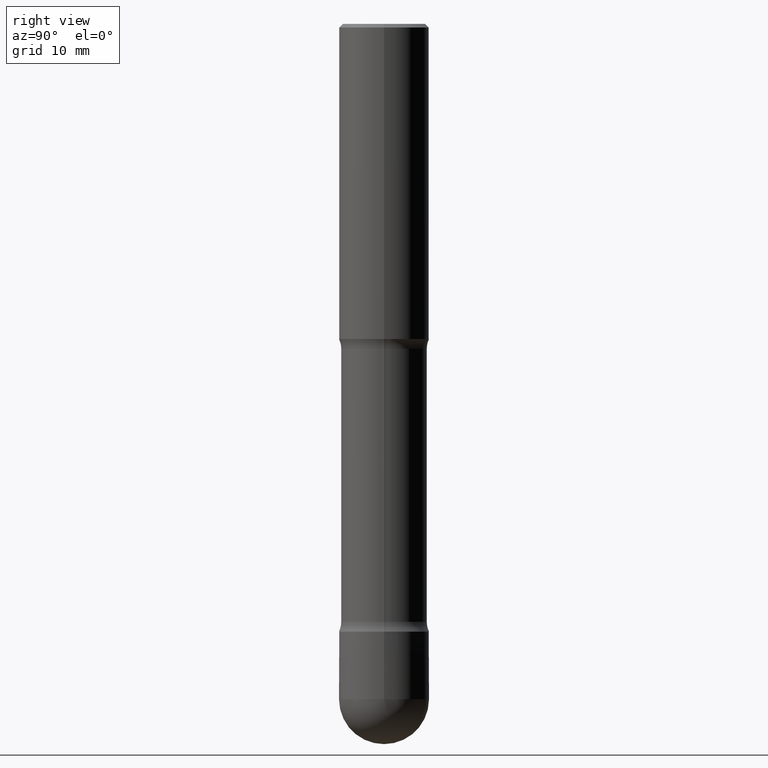
[diagram: clean part render]
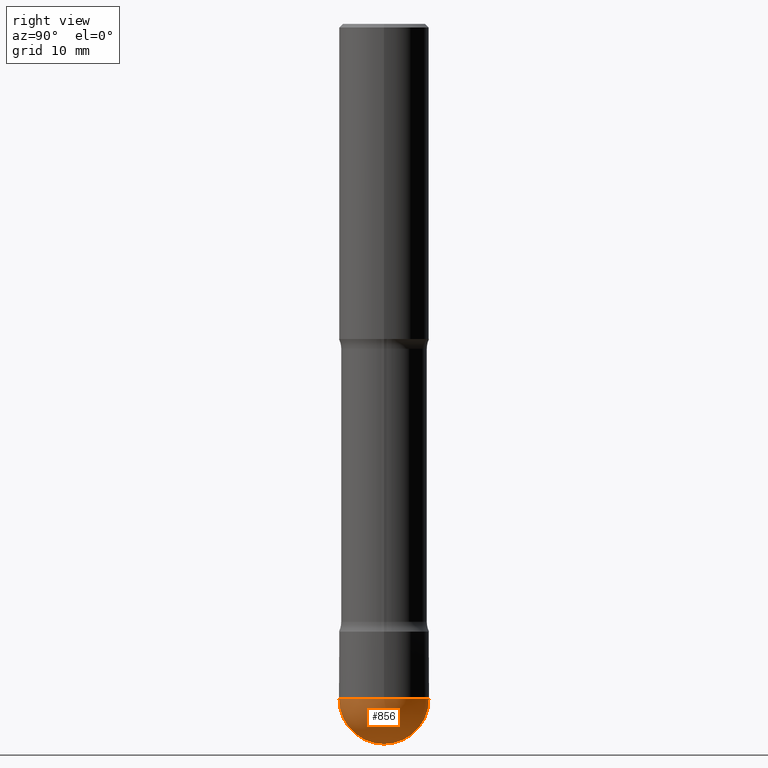
[diagram: same view with one face highlighted and labeled with its STEP entity id]
A machine part, right view. The second image highlights one B-rep face of the part: STEP entity #856.
In plain terms, the highlighted spherical surface has radius 6.35 mm.
Its self-contained STEP definition (entity closure, byte-faithful):
#2 = DIRECTION ( 'NONE',  ( 1.000000000000000000, -6.982962677686265922E-15, 4.883557194083112901E-29 ) ) ;
#6 = CARTESIAN_POINT ( 'NONE',  ( 1.776356839400337634E-15, 0.2499999999999863443, -3.750000000000000888 ) ) ;
#20 = CARTESIAN_POINT ( 'NONE',  ( 0.2499999999999993061, -1.418414293905026949E-14, -3.749999999999999556 ) ) ;
#44 = VERTEX_POINT ( 'NONE', #6 ) ;
#128 = EDGE_LOOP ( 'NONE', ( #790, #248, #689, #314 ) ) ;
#188 = EDGE_CURVE ( 'NONE', #325, #208, #704, .T. ) ;
#203 = CARTESIAN_POINT ( 'NONE',  ( 8.668097828301368932E-29, -1.381253501516086483E-14, -3.749999999999999556 ) ) ;
#204 = EDGE_CURVE ( 'NONE', #675, #44, #387, .T. ) ;
#208 = VERTEX_POINT ( 'NONE', #487 ) ;
#218 = DIRECTION ( 'NONE',  ( 1.000000000000000000, -6.982962677686267499E-15, 0.000000000000000000 ) ) ;
#226 = CARTESIAN_POINT ( 'NONE',  ( 8.668097828301368932E-29, -1.381253501516086483E-14, -3.749999999999999556 ) ) ;
#247 = CIRCLE ( 'NONE', #601, 0.2499999999999993061 ) ;
#248 = ORIENTED_EDGE ( 'NONE', *, *, #686, .T. ) ;
#259 = CARTESIAN_POINT ( 'NONE',  ( 8.668097828301368932E-29, -1.381253501516086483E-14, -3.749999999999999556 ) ) ;
#282 = DIRECTION ( 'NONE',  ( -1.000000000000000000, 6.982962677686265922E-15, -4.883557194083112340E-29 ) ) ;
#314 = ORIENTED_EDGE ( 'NONE', *, *, #355, .F. ) ;
#325 = VERTEX_POINT ( 'NONE', #415 ) ;
#352 = CIRCLE ( 'NONE', #458, 0.2500000000000002220 ) ;
#355 = EDGE_CURVE ( 'NONE', #208, #675, #247, .T. ) ;
#387 = CIRCLE ( 'NONE', #512, 0.2499999999999993061 ) ;
#415 = CARTESIAN_POINT ( 'NONE',  ( 9.268775451232909883E-29, -1.470071343486099480E-14, -4.000000000000000000 ) ) ;
#458 = AXIS2_PLACEMENT_3D ( 'NONE', #226, #837, #690 ) ;
#471 = CARTESIAN_POINT ( 'NONE',  ( 9.170508023194261117E-29, -1.309305502066179584E-14, -3.749999999999999556 ) ) ;
#487 = CARTESIAN_POINT ( 'NONE',  ( -1.745740669421475564E-15, -0.2500000000000131561, -3.749999999999998668 ) ) ;
#512 = AXIS2_PLACEMENT_3D ( 'NONE', #471, #742, #218 ) ;
#525 = AXIS2_PLACEMENT_3D ( 'NONE', #259, #2, #799 ) ;
#544 = AXIS2_PLACEMENT_3D ( 'NONE', #203, #282, #760 ) ;
#548 = CARTESIAN_POINT ( 'NONE',  ( 9.170508023194261117E-29, -1.309305502066179584E-14, -3.749999999999999556 ) ) ;
#598 = SPHERICAL_SURFACE ( 'NONE', #525, 0.2500000000000002220 ) ;
#601 = AXIS2_PLACEMENT_3D ( 'NONE', #548, #623, #813 ) ;
#623 = DIRECTION ( 'NONE',  ( -2.445468806185136597E-29, 3.491481338843145583E-15, 1.000000000000000000 ) ) ;
#675 = VERTEX_POINT ( 'NONE', #20 ) ;
#686 = EDGE_CURVE ( 'NONE', #325, #44, #352, .T. ) ;
#689 = ORIENTED_EDGE ( 'NONE', *, *, #204, .F. ) ;
#690 = DIRECTION ( 'NONE',  ( 7.105427357601000281E-15, 1.000000000000000000, 0.000000000000000000 ) ) ;
#704 = CIRCLE ( 'NONE', #544, 0.2500000000000002220 ) ;
#724 = FACE_OUTER_BOUND ( 'NONE', #128, .T. ) ;
#742 = DIRECTION ( 'NONE',  ( -2.445468806185136597E-29, 3.491481338843145583E-15, 1.000000000000000000 ) ) ;
#760 = DIRECTION ( 'NONE',  ( -6.982962677686265133E-15, -1.000000000000000000, 0.000000000000000000 ) ) ;
#790 = ORIENTED_EDGE ( 'NONE', *, *, #188, .F. ) ;
#799 = DIRECTION ( 'NONE',  ( -6.982962677686265922E-15, -1.000000000000000000, 4.370956789862817994E-15 ) ) ;
#813 = DIRECTION ( 'NONE',  ( 1.000000000000000000, -6.982962677686267499E-15, 0.000000000000000000 ) ) ;
#837 = DIRECTION ( 'NONE',  ( 1.000000000000000000, -7.105427357601001070E-15, 4.926315508542082329E-29 ) ) ;
#856 = ADVANCED_FACE ( 'NONE', ( #724 ), #598, .T. ) ;